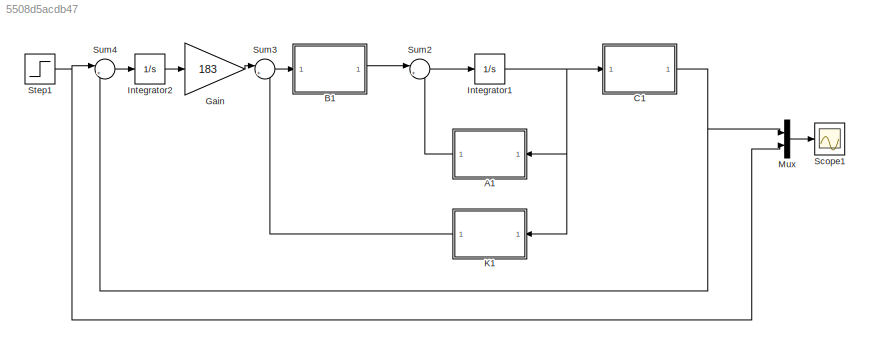
MODEL slx_5508d5acdb47
KIND model
CONFIG AbsTol = auto
CONFIG EnableMultiTasking = off
CONFIG FixedStep = auto
CONFIG MaxStep = 1e-3
CONFIG MinStep = auto
CONFIG RelTol = 1e-3
CONFIG SampleTimeConstraint = Unconstrained
CONFIG SolverName = VariableStepAuto
CONFIG StartTime = 0.0
CONFIG StopTime = 2
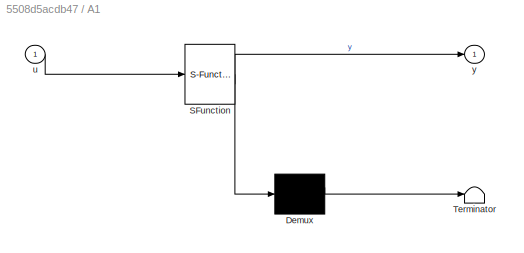
BLOCK [SubSystem] A1
  ErrorFcn = Stateflow.Translate.translate
  NameLocation = top
  PermitHierarchicalResolution = ExplicitOnly
  SFBlockType = MATLAB Function
  TreatAsAtomicUnit = on
BLOCK [Demux] A1/ Demux 
  Outputs = 1
BLOCK [S-Function] A1/ SFunction 
  EnableBusSupport = on
  FunctionName = sf_sfun
  PortCounts = [1 2]
  SFcnIsStateOwnerBlock = off
  SFunctionDeploymentMode = off
  Tag = Stateflow S-Function 5
BLOCK [Terminator] A1/ Terminator 
BLOCK [Inport] A1/u
BLOCK [Outport] A1/y
  VectorParamsAs1DForOutWhenUnconnected = off
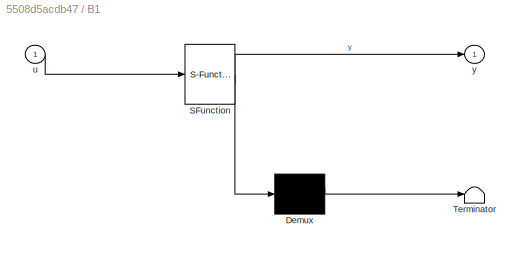
BLOCK [SubSystem] B1
  ErrorFcn = Stateflow.Translate.translate
  PermitHierarchicalResolution = ExplicitOnly
  SFBlockType = MATLAB Function
  TreatAsAtomicUnit = on
BLOCK [Demux] B1/ Demux 
  Outputs = 1
BLOCK [S-Function] B1/ SFunction 
  EnableBusSupport = on
  FunctionName = sf_sfun
  PortCounts = [1 2]
  SFcnIsStateOwnerBlock = off
  SFunctionDeploymentMode = off
  Tag = Stateflow S-Function 6
BLOCK [Terminator] B1/ Terminator 
BLOCK [Inport] B1/u
BLOCK [Outport] B1/y
  VectorParamsAs1DForOutWhenUnconnected = off
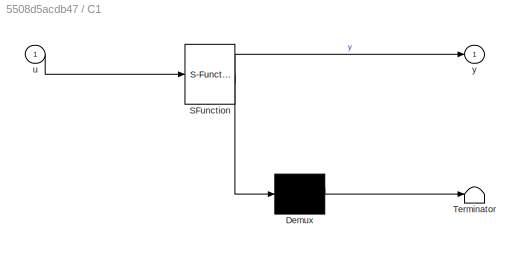
BLOCK [SubSystem] C1
  ErrorFcn = Stateflow.Translate.translate
  PermitHierarchicalResolution = ExplicitOnly
  SFBlockType = MATLAB Function
  TreatAsAtomicUnit = on
BLOCK [Demux] C1/ Demux 
  Outputs = 1
BLOCK [S-Function] C1/ SFunction 
  EnableBusSupport = on
  FunctionName = sf_sfun
  PortCounts = [1 2]
  SFcnIsStateOwnerBlock = off
  SFunctionDeploymentMode = off
  Tag = Stateflow S-Function 7
BLOCK [Terminator] C1/ Terminator 
BLOCK [Inport] C1/u
BLOCK [Outport] C1/y
  VectorParamsAs1DForOutWhenUnconnected = off
BLOCK [Gain] Gain
  Gain = 183
BLOCK [Integrator] Integrator1
  InitialCondition = [0;0]
BLOCK [Integrator] Integrator2
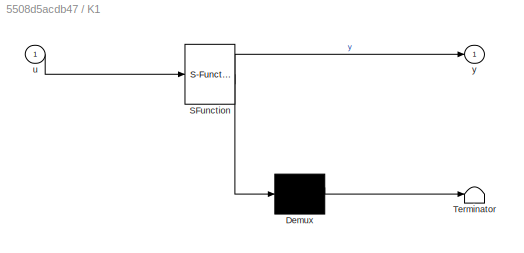
BLOCK [SubSystem] K1
  ErrorFcn = Stateflow.Translate.translate
  NameLocation = top
  PermitHierarchicalResolution = ExplicitOnly
  SFBlockType = MATLAB Function
  TreatAsAtomicUnit = on
BLOCK [Demux] K1/ Demux 
  Outputs = 1
BLOCK [S-Function] K1/ SFunction 
  EnableBusSupport = on
  FunctionName = sf_sfun
  PortCounts = [1 2]
  SFcnIsStateOwnerBlock = off
  SFunctionDeploymentMode = off
  Tag = Stateflow S-Function 8
BLOCK [Terminator] K1/ Terminator 
BLOCK [Inport] K1/u
BLOCK [Outport] K1/y
  VectorParamsAs1DForOutWhenUnconnected = off
BLOCK [Mux] Mux
  DisplayOption = bar
  Inputs = 2
BLOCK [Scope] Scope1
  Floating = off
  NumInputPorts = 1
  ScopeSpecificationString = Simulink.scopes.TimeScopeBlockCfg('CurrentConfiguration', extmgr.ConfigurationSet(extmgr.Configuration('Core','General UI',true),extmgr.Configuration('Core','Source UI',true),extmgr.Configuration('Sources','WiredSimulink',true,'DataLoggingVariableName','ScopeData1'),extmgr.Configuration('Visuals','Time Domain',true,'SerializedDisplays',{struct('MinYLimReal','-475130.08799','MaxYLimReal','4276170.7...<+1730ch>
BLOCK [Step] Step1
  SampleTime = 0
  Time = 0
BLOCK [Sum] Sum2
  Inputs = |++
BLOCK [Sum] Sum3
  Inputs = |++
BLOCK [Sum] Sum4
  Inputs = |+-
LINE A1:1 -> Sum2:2
LINE B1:1 -> Sum2:1
NET C1:1 -> Mux:1, Sum4:2
LINE Gain:1 -> Sum3:1
NET Integrator1:1 -> A1:1, C1:1, K1:1
LINE Integrator2:1 -> Gain:1
LINE K1:1 -> Sum3:2
LINE Mux:1 -> Scope1:1
NET Step1:1 -> Mux:2, Sum4:1
LINE Sum2:1 -> Integrator1:1
LINE Sum3:1 -> B1:1
LINE Sum4:1 -> Integrator2:1
note: NET lines group one-source signal fan-out (src -> all destinations, sorted); 1:1 wires keep LINE
CHART B1 states=1 transitions=1
  STATE_LABEL 'eML_blk_kernel()'
  STATE_LABEL 'SCRIPT:\nfunction y = fcn(u)\nB=[0 ; 1];\ny = B*u;\n'
CHART C1 states=1 transitions=1
  STATE_LABEL 'eML_blk_kernel()'
  STATE_LABEL 'SCRIPT:\nfunction y = fcn(u)\nC=[ 2 1];\ny = C*u;\n'
CHART K1 states=1 transitions=1
  STATE_LABEL 'eML_blk_kernel()'
  STATE_LABEL 'SCRIPT:\nfunction y = fcn(u)\nK=-[30 19];\ny = K*u;\n'
CHART A1 states=1 transitions=1
  STATE_LABEL 'eML_blk_kernel()'
  STATE_LABEL 'SCRIPT:\nfunction y = fcn(u)\nA=[0 1\n    -2 1];\ny = A*u;\n'
CHART  states=0 transitions=0
CHART  states=0 transitions=0
CHART  states=0 transitions=0
CHART  states=0 transitions=0
